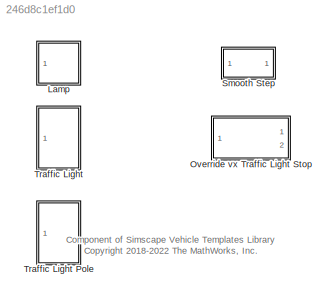
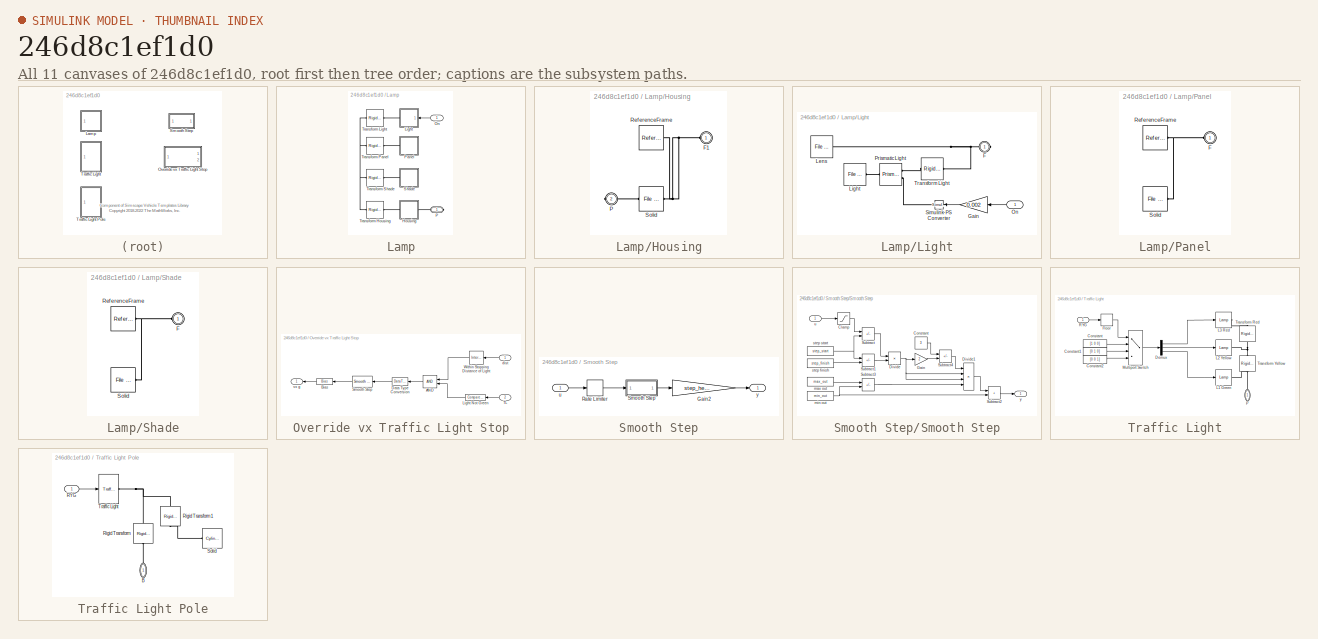
[diagram: thumbnail index - all 11 canvases of the model, root first then tree order]
MODEL slx_246d8c1ef1d0
KIND library
CONFIG AbsTol = auto
CONFIG EnableMultiTasking = off
CONFIG FixedStep = auto
CONFIG MaxStep = auto
CONFIG MinStep = auto
CONFIG RelTol = 1e-3
CONFIG SampleTimeConstraint = Unconstrained
CONFIG SolverName = VariableStepAuto
CONFIG StartTime = 0.0
CONFIG StopTime = 10.0
BLOCK [SubSystem] Lamp
  Ports = [1, 0, 0, 0, 0, 0, 1]
  RequestExecContextInheritance = off
BLOCK [SubSystem] Lamp/Housing
  Ports = [0, 0, 0, 0, 0, 1, 1]
  RequestExecContextInheritance = off
BLOCK [PMIOPort] Lamp/Housing/F1
  Side = Left
BLOCK [PMIOPort] Lamp/Housing/P
  Port = 2
  Side = Right
BLOCK [Reference] Lamp/Housing/ReferenceFrame  REF=sm_lib/Frames and
Transforms/Reference
Frame
  Ports = [0, 0, 0, 0, 0, 0, 1]
  SourceBlock = sm_lib/Frames and\nTransforms/Reference\nFrame
  SourceProductBaseCode = MS
  SourceType = Reference\nFrame
BLOCK [Reference] Lamp/Housing/Solid  REF=sm_lib/Body Elements/File Solid
  Ports = [0, 0, 0, 0, 0, 1, 1]
  SourceBlock = sm_lib/Body Elements/File Solid
  SourceProductBaseCode = MS
  SourceType = File Solid
BLOCK [SubSystem] Lamp/Light
  Ports = [1, 0, 0, 0, 0, 0, 1]
  RequestExecContextInheritance = off
BLOCK [PMIOPort] Lamp/Light/F
  Side = Right
BLOCK [Gain] Lamp/Light/Gain
  Gain = 0.002
BLOCK [Reference] Lamp/Light/Lens  REF=sm_lib/Body Elements/File Solid
  Ports = [0, 0, 0, 0, 0, 0, 1]
  SourceBlock = sm_lib/Body Elements/File Solid
  SourceProductBaseCode = MS
  SourceType = File Solid
BLOCK [Reference] Lamp/Light/Light  REF=sm_lib/Body Elements/File Solid
  Ports = [0, 0, 0, 0, 0, 0, 1]
  SourceBlock = sm_lib/Body Elements/File Solid
  SourceProductBaseCode = MS
  SourceType = File Solid
BLOCK [Inport] Lamp/Light/On
  NameLocation = top
BLOCK [Reference] Lamp/Light/Prismatic Light  REF=sm_lib/Joints/Prismatic
Joint
  Ports = [0, 0, 0, 0, 0, 2, 1]
  SourceBlock = sm_lib/Joints/Prismatic\nJoint
  SourceProductBaseCode = MS
  SourceType = Prismatic\nJoint
BLOCK [Reference] Lamp/Light/Simulink-PS Converter  REF=nesl_utility/Simulink-PS
Converter
  Ports = [1, 0, 0, 0, 0, 0, 1]
  SourceBlock = nesl_utility/Simulink-PS\nConverter
  SourceProductBaseCode = SS,PW,VE
  SourceType = Simulink-PS\nConverter
BLOCK [Reference] Lamp/Light/Transform Light  REF=sm_lib/Frames and
Transforms/Rigid
Transform
  Ports = [0, 0, 0, 0, 0, 1, 1]
  SourceBlock = sm_lib/Frames and\nTransforms/Rigid\nTransform
  SourceProductBaseCode = MS
  SourceType = Rigid\nTransform
BLOCK [Inport] Lamp/On
BLOCK [PMIOPort] Lamp/P
  Side = Right
BLOCK [SubSystem] Lamp/Panel
  Ports = [0, 0, 0, 0, 0, 1]
  RequestExecContextInheritance = off
BLOCK [PMIOPort] Lamp/Panel/F
  Side = Left
BLOCK [Reference] Lamp/Panel/ReferenceFrame  REF=sm_lib/Frames and
Transforms/Reference
Frame
  Ports = [0, 0, 0, 0, 0, 0, 1]
  SourceBlock = sm_lib/Frames and\nTransforms/Reference\nFrame
  SourceProductBaseCode = MS
  SourceType = Reference\nFrame
BLOCK [Reference] Lamp/Panel/Solid  REF=sm_lib/Body Elements/File Solid
  Ports = [0, 0, 0, 0, 0, 0, 1]
  SourceBlock = sm_lib/Body Elements/File Solid
  SourceProductBaseCode = MS
  SourceType = File Solid
BLOCK [SubSystem] Lamp/Shade
  Ports = [0, 0, 0, 0, 0, 1]
  RequestExecContextInheritance = off
BLOCK [PMIOPort] Lamp/Shade/F
  Side = Left
BLOCK [Reference] Lamp/Shade/ReferenceFrame  REF=sm_lib/Frames and
Transforms/Reference
Frame
  Ports = [0, 0, 0, 0, 0, 0, 1]
  SourceBlock = sm_lib/Frames and\nTransforms/Reference\nFrame
  SourceProductBaseCode = MS
  SourceType = Reference\nFrame
BLOCK [Reference] Lamp/Shade/Solid  REF=sm_lib/Body Elements/File Solid
  Ports = [0, 0, 0, 0, 0, 0, 1]
  SourceBlock = sm_lib/Body Elements/File Solid
  SourceProductBaseCode = MS
  SourceType = File Solid
BLOCK [Reference] Lamp/Transform Housing  REF=sm_lib/Frames and
Transforms/Rigid
Transform
  Ports = [0, 0, 0, 0, 0, 1, 1]
  SourceBlock = sm_lib/Frames and\nTransforms/Rigid\nTransform
  SourceProductBaseCode = MS
  SourceType = Rigid\nTransform
BLOCK [Reference] Lamp/Transform Light  REF=sm_lib/Frames and
Transforms/Rigid
Transform
  Ports = [0, 0, 0, 0, 0, 1, 1]
  SourceBlock = sm_lib/Frames and\nTransforms/Rigid\nTransform
  SourceProductBaseCode = MS
  SourceType = Rigid\nTransform
BLOCK [Reference] Lamp/Transform Panel  REF=sm_lib/Frames and
Transforms/Rigid
Transform
  Ports = [0, 0, 0, 0, 0, 1, 1]
  SourceBlock = sm_lib/Frames and\nTransforms/Rigid\nTransform
  SourceProductBaseCode = MS
  SourceType = Rigid\nTransform
BLOCK [Reference] Lamp/Transform Shade  REF=sm_lib/Frames and
Transforms/Rigid
Transform
  Ports = [0, 0, 0, 0, 0, 1, 1]
  SourceBlock = sm_lib/Frames and\nTransforms/Rigid\nTransform
  SourceProductBaseCode = MS
  SourceType = Rigid\nTransform
BLOCK [SubSystem] Override vx Traffic Light Stop
  Ports = [2, 1]
  RequestExecContextInheritance = off
BLOCK [Logic] Override vx Traffic Light Stop/AND
  AllPortsSameDT = off
  IconShape = distinctive
  OutDataTypeStr = boolean
  Ports = [2, 1]
BLOCK [Bias] Override vx Traffic Light Stop/Bias
  Bias = 1
  SaturateOnIntegerOverflow = off
BLOCK [DataTypeConversion] Override vx Traffic Light Stop/Data Type Conversion
  OutDataTypeStr = double
  RndMeth = Floor
  SaturateOnIntegerOverflow = off
BLOCK [Reference] Override vx Traffic Light Stop/Light Not Green  REF=simulink/Logic and Bit
Operations/Compare
To Constant
  Ports = [1, 1]
  SourceBlock = simulink/Logic and Bit\nOperations/Compare\nTo Constant
  SourceProductBaseCode = SL
  SourceType = Compare To Constant
BLOCK [Reference] Override vx Traffic Light Stop/Smooth Step  REF=$bdroot/Smooth Step
  Ports = [1, 1]
  SourceBlock = $bdroot/Smooth Step
  SourceType = Smooth Step
BLOCK [Inport] Override vx Traffic Light Stop/TL
  Port = 2
BLOCK [Reference] Override vx Traffic Light Stop/Within Stopping Distance of Light  REF=simulink/Logic and Bit
Operations/Interval Test
  AttributesFormatString = %<lowlimit> (m)  <--> %<uplimit> (m)
  Ports = [1, 1]
  SourceBlock = simulink/Logic and Bit\nOperations/Interval Test
  SourceProductBaseCode = SL
  SourceType = Interval Test
BLOCK [Inport] Override vx Traffic Light Stop/dist
BLOCK [Outport] Override vx Traffic Light Stop/vx g
  VectorParamsAs1DForOutWhenUnconnected = off
BLOCK [SubSystem] Smooth Step
  Ports = [1, 1]
  RequestExecContextInheritance = off
BLOCK [Gain] Smooth Step/Gain2
  Gain = step_height
BLOCK [RateLimiter] Smooth Step/Rate Limiter
  AttributesFormatString = Rise Rate: %<RisingSlewLimit>\nFall Rate: %<FallingSlewLimit>
  FallingSlewLimit = -1/fall_time
  RisingSlewLimit = 1/rise_time
  SampleTimeMode = inherited
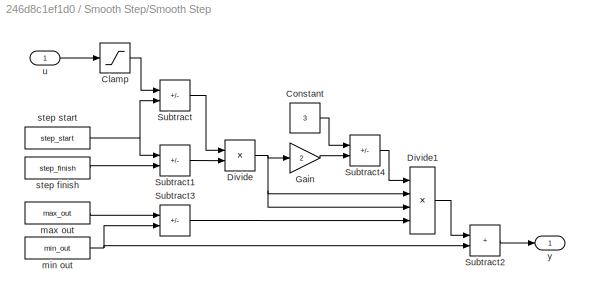
BLOCK [SubSystem] Smooth Step/Smooth Step
  Ports = [1, 1]
  RequestExecContextInheritance = off
BLOCK [Saturate] Smooth Step/Smooth Step/Clamp
  LowerLimit = step_start
  NameLocation = top
  UpperLimit = step_finish
BLOCK [Constant] Smooth Step/Smooth Step/Constant
  NameLocation = top
  Value = 3
BLOCK [Product] Smooth Step/Smooth Step/Divide
  Inputs = */
  Ports = [2, 1]
BLOCK [Product] Smooth Step/Smooth Step/Divide1
  Inputs = ****
  NameLocation = top
  Ports = [4, 1]
BLOCK [Gain] Smooth Step/Smooth Step/Gain
  Gain = 2
BLOCK [Sum] Smooth Step/Smooth Step/Subtract
  IconShape = rectangular
  Inputs = +-
  Ports = [2, 1]
BLOCK [Sum] Smooth Step/Smooth Step/Subtract1
  IconShape = rectangular
  Inputs = -+
  Ports = [2, 1]
BLOCK [Sum] Smooth Step/Smooth Step/Subtract2
  IconShape = rectangular
  Ports = [2, 1]
BLOCK [Sum] Smooth Step/Smooth Step/Subtract3
  IconShape = rectangular
  Inputs = +-
  Ports = [2, 1]
BLOCK [Sum] Smooth Step/Smooth Step/Subtract4
  IconShape = rectangular
  Inputs = +-
  Ports = [2, 1]
BLOCK [Constant] Smooth Step/Smooth Step/max out
  Value = max_out
BLOCK [Constant] Smooth Step/Smooth Step/min out
  Value = min_out
BLOCK [Constant] Smooth Step/Smooth Step/step finish
  Value = step_finish
BLOCK [Constant] Smooth Step/Smooth Step/step start
  Value = step_start
BLOCK [Inport] Smooth Step/Smooth Step/u
  NameLocation = top
BLOCK [Outport] Smooth Step/Smooth Step/y
  VectorParamsAs1DForOutWhenUnconnected = off
BLOCK [Inport] Smooth Step/u
BLOCK [Outport] Smooth Step/y
  VectorParamsAs1DForOutWhenUnconnected = off
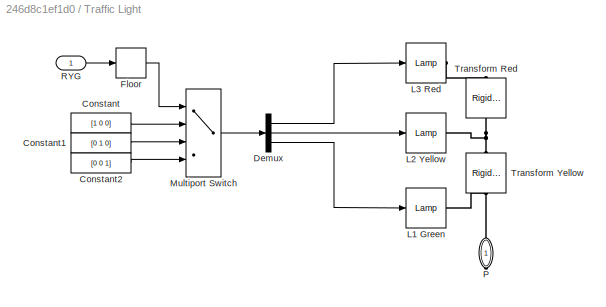
BLOCK [SubSystem] Traffic Light
  Ports = [1, 0, 0, 0, 0, 0, 1]
  RequestExecContextInheritance = off
BLOCK [SubSystem] Traffic Light Pole
  Ports = [1, 0, 0, 0, 0, 0, 1]
  RequestExecContextInheritance = off
BLOCK [PMIOPort] Traffic Light Pole/B
  NameLocation = left
  Side = Right
BLOCK [Inport] Traffic Light Pole/RYG
BLOCK [Reference] Traffic Light Pole/Rigid Transform  REF=sm_lib/Frames and
Transforms/Rigid
Transform
  NameLocation = left
  Ports = [0, 0, 0, 0, 0, 1, 1]
  SourceBlock = sm_lib/Frames and\nTransforms/Rigid\nTransform
  SourceProductBaseCode = MS
  SourceType = Rigid\nTransform
BLOCK [Reference] Traffic Light Pole/Rigid Transform1  REF=sm_lib/Frames and
Transforms/Rigid
Transform
  NameLocation = right
  Ports = [0, 0, 0, 0, 0, 1, 1]
  SourceBlock = sm_lib/Frames and\nTransforms/Rigid\nTransform
  SourceProductBaseCode = MS
  SourceType = Rigid\nTransform
BLOCK [Reference] Traffic Light Pole/Solid  REF=sm_lib/Body Elements/Cylindrical Solid
  NameLocation = top
  Ports = [0, 0, 0, 0, 0, 0, 1]
  SourceBlock = sm_lib/Body Elements/Cylindrical Solid
  SourceProductBaseCode = MS
  SourceType = Cylindrical Solid
BLOCK [Reference] Traffic Light Pole/Traffic Light  REF=$bdroot/Traffic Light
  Ports = [1, 0, 0, 0, 0, 0, 1]
  SourceBlock = $bdroot/Traffic Light
BLOCK [Constant] Traffic Light/Constant
  Value = [1 0 0]
BLOCK [Constant] Traffic Light/Constant1
  Value = [0 1 0]
BLOCK [Constant] Traffic Light/Constant2
  Value = [0 0 1]
BLOCK [Demux] Traffic Light/Demux
  Outputs = 3
  Ports = [1, 3]
BLOCK [Rounding] Traffic Light/Floor
BLOCK [Reference] Traffic Light/L1 Green  REF=$bdroot/Lamp
  Ports = [1, 0, 0, 0, 0, 0, 1]
  SourceBlock = $bdroot/Lamp
BLOCK [Reference] Traffic Light/L2 Yellow  REF=$bdroot/Lamp
  Ports = [1, 0, 0, 0, 0, 0, 1]
  SourceBlock = $bdroot/Lamp
BLOCK [Reference] Traffic Light/L3 Red  REF=$bdroot/Lamp
  Ports = [1, 0, 0, 0, 0, 0, 1]
  SourceBlock = $bdroot/Lamp
BLOCK [MultiPortSwitch] Traffic Light/Multiport Switch
  InputSameDT = off
  Ports = [4, 1]
  SaturateOnIntegerOverflow = off
BLOCK [PMIOPort] Traffic Light/P
  NameLocation = right
  Side = Right
BLOCK [Inport] Traffic Light/RYG
BLOCK [Reference] Traffic Light/Transform Red  REF=sm_lib/Frames and
Transforms/Rigid
Transform
  NameLocation = right
  Ports = [0, 0, 0, 0, 0, 1, 1]
  SourceBlock = sm_lib/Frames and\nTransforms/Rigid\nTransform
  SourceProductBaseCode = MS
  SourceType = Rigid\nTransform
BLOCK [Reference] Traffic Light/Transform Yellow  REF=sm_lib/Frames and
Transforms/Rigid
Transform
  NameLocation = right
  Ports = [0, 0, 0, 0, 0, 1, 1]
  SourceBlock = sm_lib/Frames and\nTransforms/Rigid\nTransform
  SourceProductBaseCode = MS
  SourceType = Rigid\nTransform
ANNOTATION (root): Component of Simscape Vehicle Templates Library <copyright redacted>
LINE Lamp/Light/Gain:1 -> Lamp/Light/Simulink-PS Converter:1
LINE Lamp/Light/On:1 -> Lamp/Light/Gain:1
LINE Lamp/On:1 -> Lamp/Light:1
LINE Override vx Traffic Light Stop/AND:1 -> Override vx Traffic Light Stop/Data Type Conversion:1
LINE Override vx Traffic Light Stop/Bias:1 -> Override vx Traffic Light Stop/vx g:1
LINE Override vx Traffic Light Stop/Data Type Conversion:1 -> Override vx Traffic Light Stop/Smooth Step:1
LINE Override vx Traffic Light Stop/Light Not Green:1 -> Override vx Traffic Light Stop/AND:2
LINE Override vx Traffic Light Stop/Smooth Step:1 -> Override vx Traffic Light Stop/Bias:1
LINE Override vx Traffic Light Stop/TL:1 -> Override vx Traffic Light Stop/Light Not Green:1
LINE Override vx Traffic Light Stop/Within Stopping Distance of Light:1 -> Override vx Traffic Light Stop/AND:1
LINE Override vx Traffic Light Stop/dist:1 -> Override vx Traffic Light Stop/Within Stopping Distance of Light:1
LINE Smooth Step/Gain2:1 -> Smooth Step/y:1
LINE Smooth Step/Rate Limiter:1 -> Smooth Step/Smooth Step:1
LINE Smooth Step/Smooth Step/Clamp:1 -> Smooth Step/Smooth Step/Subtract:1
LINE Smooth Step/Smooth Step/Constant:1 -> Smooth Step/Smooth Step/Subtract4:1
LINE Smooth Step/Smooth Step/Divide1:1 -> Smooth Step/Smooth Step/Subtract2:1
NET Smooth Step/Smooth Step/Divide:1 -> Smooth Step/Smooth Step/Divide1:2, Smooth Step/Smooth Step/Divide1:3, Smooth Step/Smooth Step/Gain:1
LINE Smooth Step/Smooth Step/Gain:1 -> Smooth Step/Smooth Step/Subtract4:2
LINE Smooth Step/Smooth Step/Subtract1:1 -> Smooth Step/Smooth Step/Divide:2
LINE Smooth Step/Smooth Step/Subtract2:1 -> Smooth Step/Smooth Step/y:1
LINE Smooth Step/Smooth Step/Subtract3:1 -> Smooth Step/Smooth Step/Divide1:4
LINE Smooth Step/Smooth Step/Subtract4:1 -> Smooth Step/Smooth Step/Divide1:1
LINE Smooth Step/Smooth Step/Subtract:1 -> Smooth Step/Smooth Step/Divide:1
LINE Smooth Step/Smooth Step/max out:1 -> Smooth Step/Smooth Step/Subtract3:1
NET Smooth Step/Smooth Step/min out:1 -> Smooth Step/Smooth Step/Subtract2:2, Smooth Step/Smooth Step/Subtract3:2
LINE Smooth Step/Smooth Step/step finish:1 -> Smooth Step/Smooth Step/Subtract1:2
NET Smooth Step/Smooth Step/step start:1 -> Smooth Step/Smooth Step/Subtract1:1, Smooth Step/Smooth Step/Subtract:2
LINE Smooth Step/Smooth Step/u:1 -> Smooth Step/Smooth Step/Clamp:1
LINE Smooth Step/Smooth Step:1 -> Smooth Step/Gain2:1
LINE Smooth Step/u:1 -> Smooth Step/Rate Limiter:1
LINE Traffic Light Pole/RYG:1 -> Traffic Light Pole/Traffic Light:1
LINE Traffic Light/Constant1:1 -> Traffic Light/Multiport Switch:3
LINE Traffic Light/Constant2:1 -> Traffic Light/Multiport Switch:4
LINE Traffic Light/Constant:1 -> Traffic Light/Multiport Switch:2
LINE Traffic Light/Demux:1 -> Traffic Light/L3 Red:1
LINE Traffic Light/Demux:2 -> Traffic Light/L2 Yellow:1
LINE Traffic Light/Demux:3 -> Traffic Light/L1 Green:1
LINE Traffic Light/Floor:1 -> Traffic Light/Multiport Switch:1
LINE Traffic Light/Multiport Switch:1 -> Traffic Light/Demux:1
LINE Traffic Light/RYG:1 -> Traffic Light/Floor:1
PNET net1: Lamp/Housing/F1:RConn1 -- Lamp/Housing/ReferenceFrame:RConn1 -- Lamp/Housing/Solid:RConn1
PLINE Lamp/Housing/P:RConn1 -- Lamp/Housing/Solid:LConn1
PLINE Lamp/Housing:LConn1 -- Lamp/Transform Housing:RConn1
PLINE Lamp/Housing:RConn1 -- Lamp/P:RConn1
PNET net2: Lamp/Light/F:RConn1 -- Lamp/Light/Lens:RConn1 -- Lamp/Light/Transform Light:LConn1
PLINE Lamp/Light/Light:RConn1 -- Lamp/Light/Prismatic Light:RConn1
PLINE Lamp/Light/Prismatic Light:LConn1 -- Lamp/Light/Transform Light:RConn1
PLINE Lamp/Light/Prismatic Light:LConn2 -- Lamp/Light/Simulink-PS Converter:RConn1
PLINE Lamp/Light:RConn1 -- Lamp/Transform Light:RConn1
PNET net3: Lamp/Panel/F:RConn1 -- Lamp/Panel/ReferenceFrame:RConn1 -- Lamp/Panel/Solid:RConn1
PLINE Lamp/Panel:LConn1 -- Lamp/Transform Panel:RConn1
PNET net4: Lamp/Shade/F:RConn1 -- Lamp/Shade/ReferenceFrame:RConn1 -- Lamp/Shade/Solid:RConn1
PLINE Lamp/Shade:LConn1 -- Lamp/Transform Shade:RConn1
PNET net5: Lamp/Transform Housing:LConn1 -- Lamp/Transform Light:LConn1 -- Lamp/Transform Panel:LConn1 -- Lamp/Transform Shade:LConn1
PLINE Traffic Light Pole/B:RConn1 -- Traffic Light Pole/Rigid Transform:LConn1
PLINE Traffic Light Pole/Rigid Transform1:LConn1 -- Traffic Light Pole/Solid:RConn1
PNET net6: Traffic Light Pole/Rigid Transform1:RConn1 -- Traffic Light Pole/Rigid Transform:RConn1 -- Traffic Light Pole/Traffic Light:RConn1
PNET net7: Traffic Light/L1 Green:RConn1 -- Traffic Light/P:RConn1 -- Traffic Light/Transform Yellow:LConn1
PNET net8: Traffic Light/L2 Yellow:RConn1 -- Traffic Light/Transform Red:LConn1 -- Traffic Light/Transform Yellow:RConn1
PLINE Traffic Light/L3 Red:RConn1 -- Traffic Light/Transform Red:RConn1
note: NET lines group one-source signal fan-out (src -> all destinations, sorted); 1:1 wires keep LINE; PNET lines group multi-terminal physical nets as a canonical sorted terminal list (undirected conserving connections); 2-terminal nets keep the pairwise PLINE form
